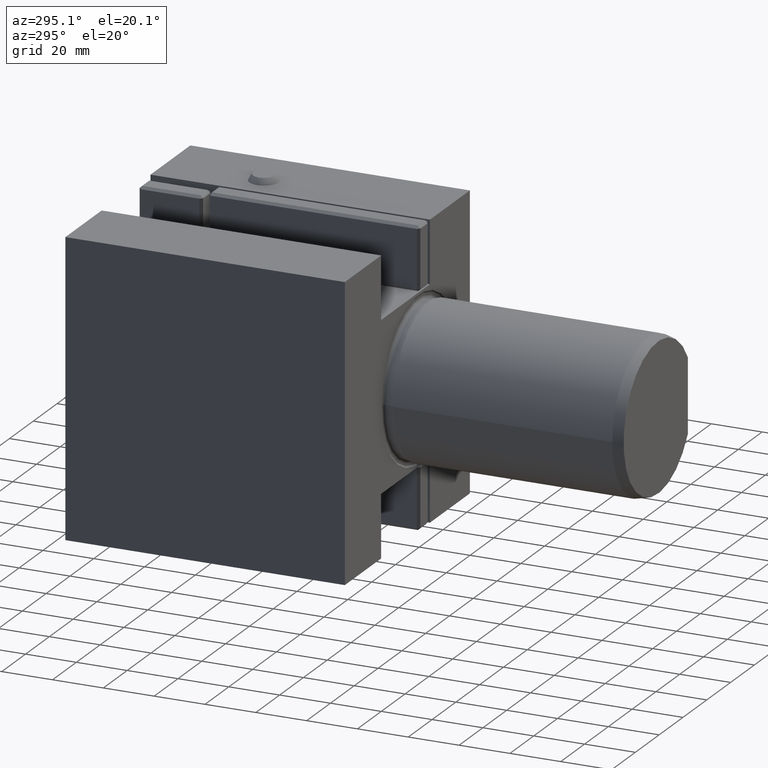
[diagram: clean part render]
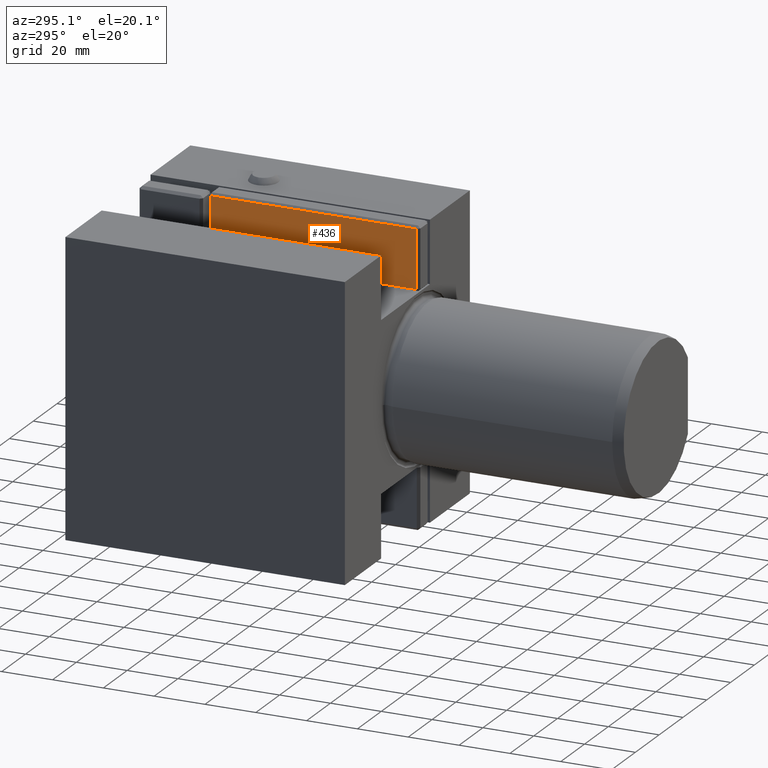
[diagram: same view with one face highlighted and labeled with its STEP entity id]
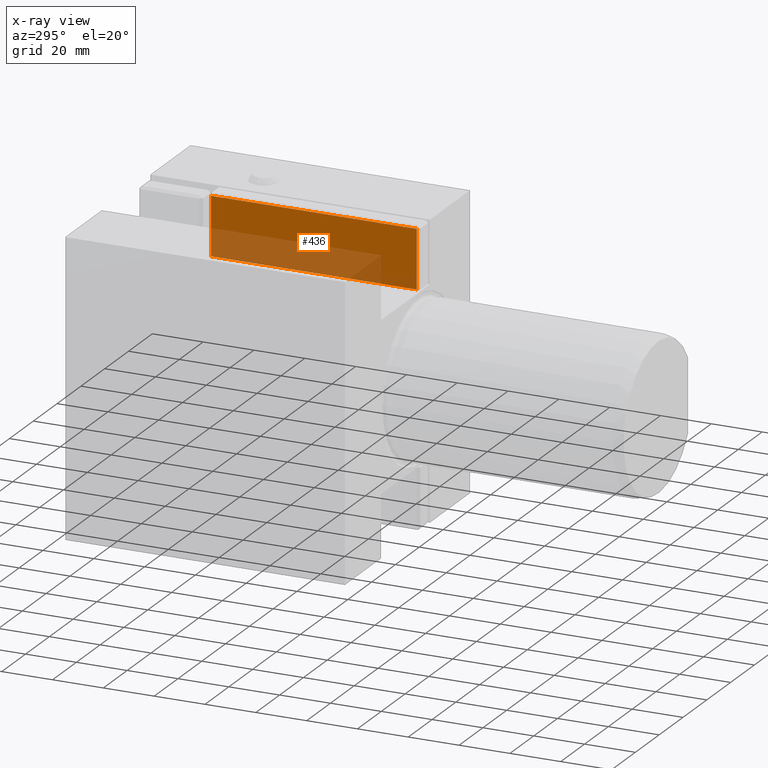
[diagram: x-ray of the same camera — body ghosted, the highlighted face saturated]
A machine part, auxiliary view. The second image highlights one B-rep face of the part: STEP entity #436.
The next image is the same camera in x-ray: the body ghosted, the highlighted face saturated — about 39% of this face is hidden behind the body in this view.
In plain terms, the highlighted planar face has unit normal (1, 0, -0).
Its self-contained STEP definition (entity closure, byte-faithful):
#436 = ADVANCED_FACE ( 'Defeature completata2_106', ( #2187 ), #15599, .F. ) ;
#796 = CARTESIAN_POINT ( 'NONE',  ( -3.469446951953614189E-15, 82.00000000000001421, 32.79999999999998295 ) ) ;
#1067 = CARTESIAN_POINT ( 'NONE',  ( 1.734723475976807094E-15, 82.00000000000001421, 56.79999999999999716 ) ) ;
#1117 = VERTEX_POINT ( 'NONE', #15254 ) ;
#1928 = DIRECTION ( 'NONE',  ( 4.521748565083066961E-32, -1.000000000000000000, 9.860761315262647568E-32 ) ) ;
#2187 = FACE_OUTER_BOUND ( 'NONE', #14351, .T. ) ;
#2278 = DIRECTION ( 'NONE',  ( -4.521748565083066961E-32, 1.000000000000000000, -9.860761315262647568E-32 ) ) ;
#2391 = VECTOR ( 'NONE', #13934, 1000.000000000000000 ) ;
#2752 = ORIENTED_EDGE ( 'NONE', *, *, #16604, .T. ) ;
#3045 = DIRECTION ( 'NONE',  ( -1.206764157201256059E-16, -9.860761315262647568E-32, -1.000000000000000000 ) ) ;
#3563 = DIRECTION ( 'NONE',  ( 1.000000000000000000, 4.521748565083065866E-32, -1.206764157201257291E-16 ) ) ;
#4286 = VERTEX_POINT ( 'NONE', #10352 ) ;
#5031 = ORIENTED_EDGE ( 'NONE', *, *, #7219, .T. ) ;
#5802 = CARTESIAN_POINT ( 'NONE',  ( -3.469446951953614189E-15, 0.9999999999999800160, 33.79999999999997584 ) ) ;
#6096 = DIRECTION ( 'NONE',  ( -4.521748565083066961E-32, 1.000000000000000000, -9.860761315262647568E-32 ) ) ;
#7219 = EDGE_CURVE ( 'NONE', #16207, #1117, #8760, .T. ) ;
#7777 = CARTESIAN_POINT ( 'NONE',  ( 1.734723475976807094E-15, 83.00000000000001421, 56.79999999999999716 ) ) ;
#8498 = CARTESIAN_POINT ( 'NONE',  ( -3.469446951953614189E-15, 0.9999999999999800160, 32.79999999999999005 ) ) ;
#8760 = LINE ( 'NONE', #796, #12979 ) ;
#8836 = EDGE_CURVE ( 'NONE', #12291, #4286, #13769, .T. ) ;
#8884 = EDGE_CURVE ( 'NONE', #4286, #16207, #14101, .T. ) ;
#9270 = AXIS2_PLACEMENT_3D ( 'NONE', #13000, #3563, #2278 ) ;
#9756 = LINE ( 'NONE', #9927, #11603 ) ;
#9927 = CARTESIAN_POINT ( 'NONE',  ( -3.469446951953614189E-15, 83.00000000000001421, 33.79999999999996874 ) ) ;
#10352 = CARTESIAN_POINT ( 'NONE',  ( 1.734723475976807094E-15, 0.9999999999999800160, 56.80000000000000426 ) ) ;
#11603 = VECTOR ( 'NONE', #1928, 1000.000000000000000 ) ;
#12291 = VERTEX_POINT ( 'NONE', #5802 ) ;
#12979 = VECTOR ( 'NONE', #3045, 1000.000000000000000 ) ;
#13000 = CARTESIAN_POINT ( 'NONE',  ( -3.469446951953614189E-15, 83.00000000000001421, 32.79999999999998295 ) ) ;
#13769 = LINE ( 'NONE', #8498, #2391 ) ;
#13934 = DIRECTION ( 'NONE',  ( 1.206764157201256059E-16, 9.860761315262647568E-32, 1.000000000000000000 ) ) ;
#14101 = LINE ( 'NONE', #7777, #14146 ) ;
#14146 = VECTOR ( 'NONE', #6096, 1000.000000000000000 ) ;
#14351 = EDGE_LOOP ( 'NONE', ( #2752, #16383, #16027, #5031 ) ) ;
#15254 = CARTESIAN_POINT ( 'NONE',  ( -3.469446951953614189E-15, 82.00000000000001421, 33.79999999999996874 ) ) ;
#15599 = PLANE ( 'NONE',  #9270 ) ;
#16027 = ORIENTED_EDGE ( 'NONE', *, *, #8884, .T. ) ;
#16207 = VERTEX_POINT ( 'NONE', #1067 ) ;
#16383 = ORIENTED_EDGE ( 'NONE', *, *, #8836, .T. ) ;
#16604 = EDGE_CURVE ( 'NONE', #1117, #12291, #9756, .T. ) ;